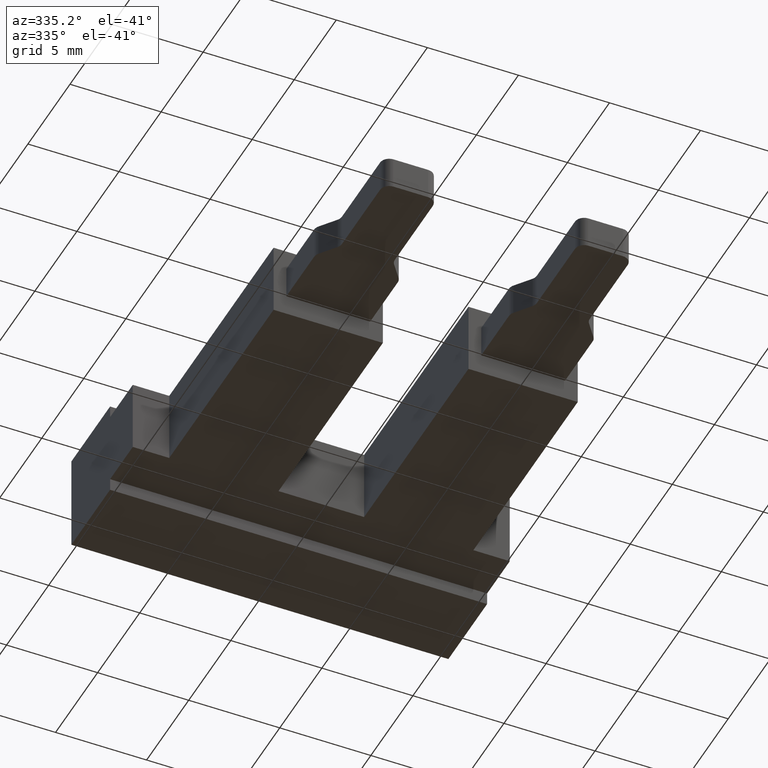
[diagram: clean part render]
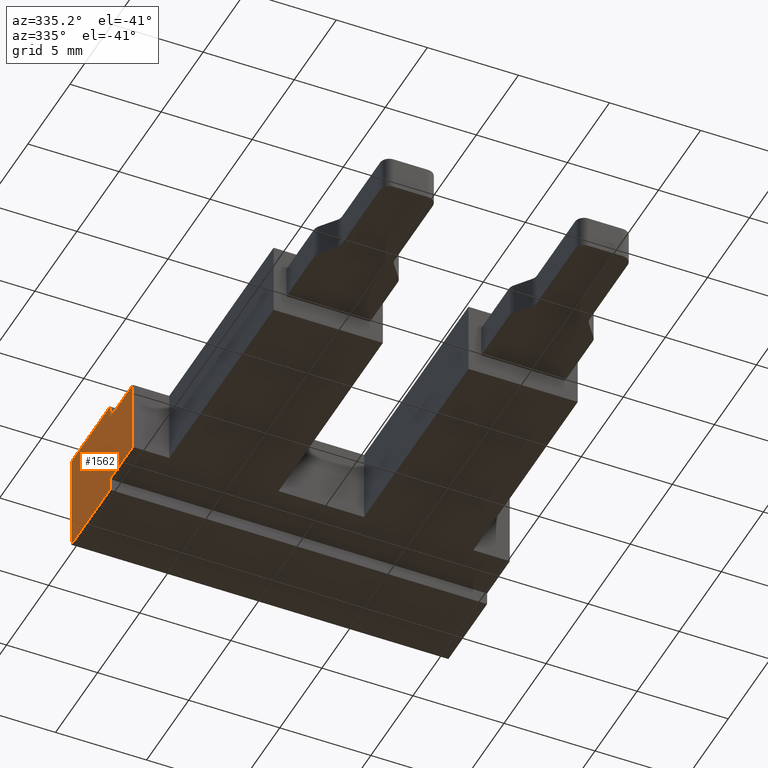
[diagram: same view with one face highlighted and labeled with its STEP entity id]
A machine part, auxiliary view. The second image highlights one B-rep face of the part: STEP entity #1562.
In plain terms, the highlighted planar face has unit normal (1, -0, 0).
Its self-contained STEP definition (entity closure, byte-faithful):
#116 = LINE ( 'NONE', #143, #1286 ) ;
#126 = DIRECTION ( 'NONE',  ( 0.0000000000000000000, -1.000000000000000000, -0.0000000000000000000 ) ) ;
#137 = LINE ( 'NONE', #144, #1264 ) ;
#143 = CARTESIAN_POINT ( 'NONE',  ( 0.0000000000000000000, 7.299999999999999800, 4.100000000000000500 ) ) ;
#144 = CARTESIAN_POINT ( 'NONE',  ( 0.0000000000000000000, 7.299999999999999800, -0.8000000000000000400 ) ) ;
#146 = DIRECTION ( 'NONE',  ( -0.0000000000000000000, 0.0000000000000000000, 1.000000000000000000 ) ) ;
#147 = CARTESIAN_POINT ( 'NONE',  ( 0.0000000000000000000, 2.317590563905012700E-015, 0.0000000000000000000 ) ) ;
#153 = DIRECTION ( 'NONE',  ( -2.409338161078894500E-017, -1.000000000000000000, -0.0000000000000000000 ) ) ;
#156 = LINE ( 'NONE', #147, #1251 ) ;
#225 = CARTESIAN_POINT ( 'NONE',  ( 0.0000000000000000000, 2.699999999999997500, -0.8000000000000000400 ) ) ;
#245 = DIRECTION ( 'NONE',  ( 0.0000000000000000000, 0.0000000000000000000, -1.000000000000000000 ) ) ;
#246 = LINE ( 'NONE', #254, #1275 ) ;
#254 = CARTESIAN_POINT ( 'NONE',  ( 0.0000000000000000000, 7.299999999999999800, -0.6999999999999999600 ) ) ;
#255 = DIRECTION ( 'NONE',  ( 2.409338161078894500E-017, 1.000000000000000000, 0.0000000000000000000 ) ) ;
#259 = LINE ( 'NONE', #225, #1281 ) ;
#271 = LINE ( 'NONE', #279, #1343 ) ;
#279 = CARTESIAN_POINT ( 'NONE',  ( 0.0000000000000000000, 0.0000000000000000000, 4.100000000000000500 ) ) ;
#291 = DIRECTION ( 'NONE',  ( 0.0000000000000000000, -0.0000000000000000000, 1.000000000000000000 ) ) ;
#433 = VERTEX_POINT ( 'NONE', #569 ) ;
#434 = VERTEX_POINT ( 'NONE', #868 ) ;
#457 = VERTEX_POINT ( 'NONE', #843 ) ;
#461 = VERTEX_POINT ( 'NONE', #830 ) ;
#462 = VERTEX_POINT ( 'NONE', #869 ) ;
#467 = VERTEX_POINT ( 'NONE', #831 ) ;
#481 = VERTEX_POINT ( 'NONE', #887 ) ;
#498 = VERTEX_POINT ( 'NONE', #920 ) ;
#540 = EDGE_LOOP ( 'NONE', ( #773, #763, #801, #760, #756, #680, #682, #772 ) ) ;
#569 = CARTESIAN_POINT ( 'NONE',  ( -1.108295554096292100E-016, 2.699999999999997500, 4.100000000000000500 ) ) ;
#680 = ORIENTED_EDGE ( 'NONE', *, *, #1473, .F. ) ;
#682 = ORIENTED_EDGE ( 'NONE', *, *, #1502, .F. ) ;
#756 = ORIENTED_EDGE ( 'NONE', *, *, #1561, .F. ) ;
#760 = ORIENTED_EDGE ( 'NONE', *, *, #1557, .T. ) ;
#763 = ORIENTED_EDGE ( 'NONE', *, *, #1524, .T. ) ;
#772 = ORIENTED_EDGE ( 'NONE', *, *, #1501, .F. ) ;
#773 = ORIENTED_EDGE ( 'NONE', *, *, #1478, .T. ) ;
#801 = ORIENTED_EDGE ( 'NONE', *, *, #1469, .F. ) ;
#830 = CARTESIAN_POINT ( 'NONE',  ( -1.108295554096292100E-016, 2.699999999999997500, 4.799999999999999800 ) ) ;
#831 = CARTESIAN_POINT ( 'NONE',  ( 0.0000000000000000000, 7.299999999999999800, 4.799999999999999800 ) ) ;
#843 = CARTESIAN_POINT ( 'NONE',  ( -1.108295554096292100E-016, 2.699999999999997500, -0.6999999999999999600 ) ) ;
#868 = CARTESIAN_POINT ( 'NONE',  ( -8.794084287937965300E-017, 0.0000000000000000000, 4.100000000000000500 ) ) ;
#869 = CARTESIAN_POINT ( 'NONE',  ( 0.0000000000000000000, 2.699999999999997500, 0.0000000000000000000 ) ) ;
#887 = CARTESIAN_POINT ( 'NONE',  ( 0.0000000000000000000, 7.299999999999999800, -0.6999999999999999600 ) ) ;
#920 = CARTESIAN_POINT ( 'NONE',  ( -8.794084287937965300E-017, 0.0000000000000000000, 0.0000000000000000000 ) ) ;
#991 = DIRECTION ( 'NONE',  ( 0.0000000000000000000, 0.0000000000000000000, 1.000000000000000000 ) ) ;
#993 = LINE ( 'NONE', #994, #1312 ) ;
#994 = CARTESIAN_POINT ( 'NONE',  ( 0.0000000000000000000, 7.299999999999999800, 4.799999999999999800 ) ) ;
#1004 = FACE_OUTER_BOUND ( 'NONE', #540, .T. ) ;
#1011 = DIRECTION ( 'NONE',  ( 2.409338161078894500E-017, 1.000000000000000000, 0.0000000000000000000 ) ) ;
#1013 = CARTESIAN_POINT ( 'NONE',  ( -1.108295554096292100E-016, 2.699999999999997500, -0.8000000000000000400 ) ) ;
#1014 = PLANE ( 'NONE',  #1337 ) ;
#1016 = DIRECTION ( 'NONE',  ( 1.000000000000000000, -2.409338161078894500E-017, 0.0000000000000000000 ) ) ;
#1018 = CARTESIAN_POINT ( 'NONE',  ( 0.0000000000000000000, 7.299999999999999800, -0.8000000000000000400 ) ) ;
#1023 = DIRECTION ( 'NONE',  ( -2.409338161078894500E-017, -1.000000000000000000, 0.0000000000000000000 ) ) ;
#1035 = LINE ( 'NONE', #1013, #1331 ) ;
#1251 = VECTOR ( 'NONE', #126, 1000.000000000000000 ) ;
#1264 = VECTOR ( 'NONE', #146, 1000.000000000000000 ) ;
#1275 = VECTOR ( 'NONE', #255, 1000.000000000000000 ) ;
#1281 = VECTOR ( 'NONE', #245, 1000.000000000000000 ) ;
#1286 = VECTOR ( 'NONE', #153, 1000.000000000000000 ) ;
#1312 = VECTOR ( 'NONE', #1023, 1000.000000000000000 ) ;
#1331 = VECTOR ( 'NONE', #991, 1000.000000000000000 ) ;
#1337 = AXIS2_PLACEMENT_3D ( 'NONE', #1018, #1016, #1011 ) ;
#1343 = VECTOR ( 'NONE', #291, 1000.000000000000000 ) ;
#1469 = EDGE_CURVE ( 'NONE', #433, #434, #116, .T. ) ;
#1473 = EDGE_CURVE ( 'NONE', #481, #467, #137, .T. ) ;
#1478 = EDGE_CURVE ( 'NONE', #462, #498, #156, .T. ) ;
#1501 = EDGE_CURVE ( 'NONE', #462, #457, #259, .T. ) ;
#1502 = EDGE_CURVE ( 'NONE', #457, #481, #246, .T. ) ;
#1524 = EDGE_CURVE ( 'NONE', #498, #434, #271, .T. ) ;
#1557 = EDGE_CURVE ( 'NONE', #433, #461, #1035, .T. ) ;
#1561 = EDGE_CURVE ( 'NONE', #467, #461, #993, .T. ) ;
#1562 = ADVANCED_FACE ( 'NONE', ( #1004 ), #1014, .F. ) ;